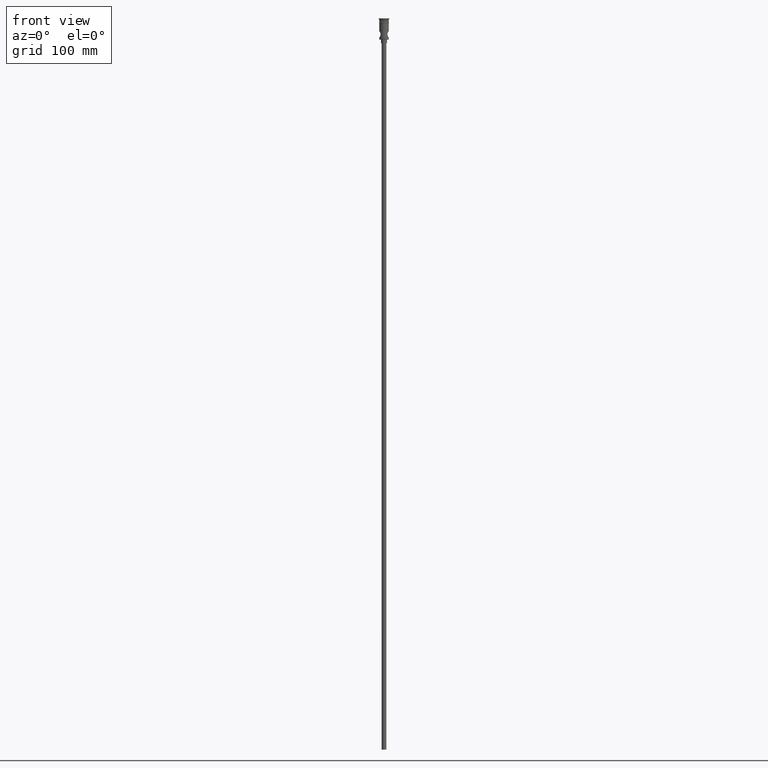
[diagram: clean part render]
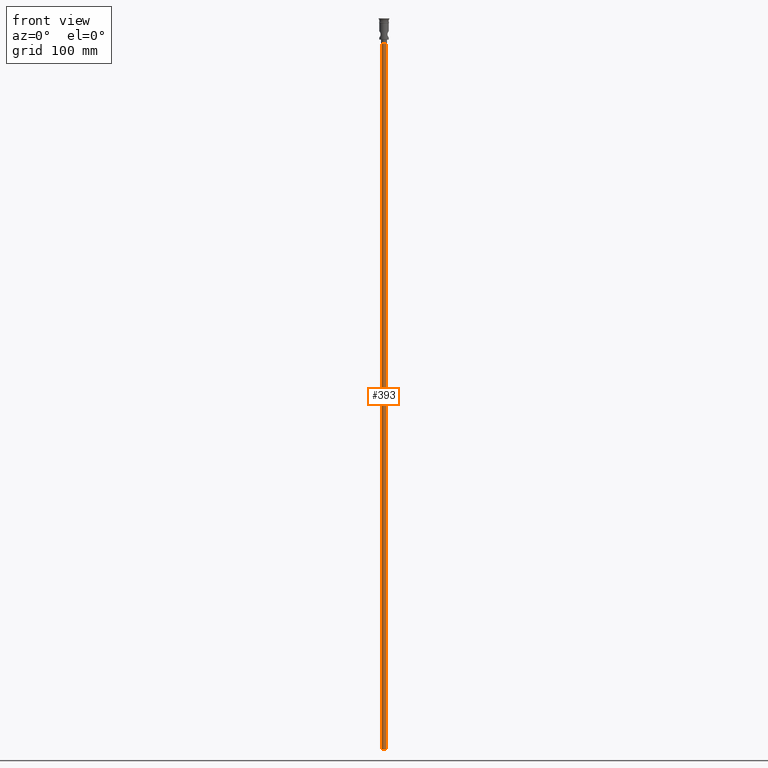
[diagram: same view with one face highlighted and labeled with its STEP entity id]
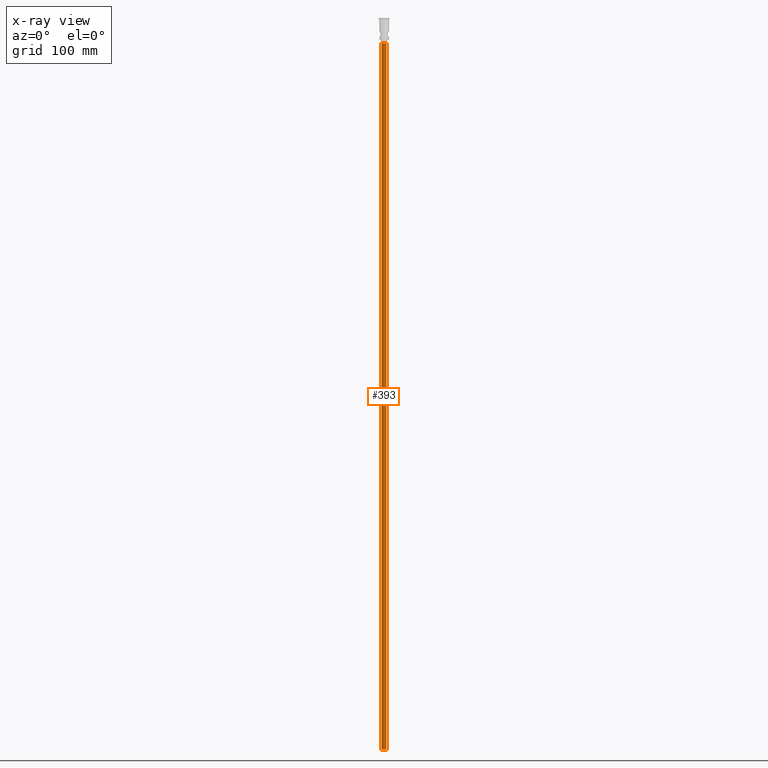
[diagram: x-ray of the same camera — body ghosted, the highlighted face saturated]
A machine part, front view. The second image highlights one B-rep face of the part: STEP entity #393.
The next image is the same camera in x-ray: the body ghosted, the highlighted face saturated — about 0% of this face is hidden behind the body in this view.
In plain terms, the highlighted cylindrical surface (edge-blend (fillet) strip) has radius 2 mm, axis along (-0, -0, 1).
Its self-contained STEP definition (entity closure, byte-faithful):
#42 = CARTESIAN_POINT ( 'NONE',  ( 0.000000000000000000, 0.000000000000000000, -618.0000000000000000 ) ) ;
#129 = CARTESIAN_POINT ( 'NONE',  ( 0.000000000000000000, 0.000000000000000000, -618.0000000000000000 ) ) ;
#151 = DIRECTION ( 'NONE',  ( 1.000000000000000000, 0.000000000000000000, 0.000000000000000000 ) ) ;
#155 = CARTESIAN_POINT ( 'NONE',  ( -2.000000000000000000, 2.449293598294706414E-16, -618.0000000000000000 ) ) ;
#185 = AXIS2_PLACEMENT_3D ( 'NONE', #42, #1153, #151 ) ;
#224 = FACE_OUTER_BOUND ( 'NONE', #814, .T. ) ;
#226 = DIRECTION ( 'NONE',  ( -0.000000000000000000, -0.000000000000000000, 1.000000000000000000 ) ) ;
#229 = CARTESIAN_POINT ( 'NONE',  ( 2.000000000000000000, 0.000000000000000000, -618.0000000000000000 ) ) ;
#277 = VERTEX_POINT ( 'NONE', #584 ) ;
#328 = AXIS2_PLACEMENT_3D ( 'NONE', #129, #905, #1350 ) ;
#356 = DIRECTION ( 'NONE',  ( -1.000000000000000000, 0.000000000000000000, 0.000000000000000000 ) ) ;
#393 = ADVANCED_FACE ( 'NONE', ( #224 ), #1118, .T. ) ;
#533 = AXIS2_PLACEMENT_3D ( 'NONE', #786, #1236, #356 ) ;
#564 = LINE ( 'NONE', #1208, #620 ) ;
#573 = DIRECTION ( 'NONE',  ( -0.000000000000000000, -0.000000000000000000, 1.000000000000000000 ) ) ;
#577 = CIRCLE ( 'NONE', #328, 2.000000000000000000 ) ;
#584 = CARTESIAN_POINT ( 'NONE',  ( -2.000000000000000000, 2.449293598294706414E-16, -20.99999999999999645 ) ) ;
#620 = VECTOR ( 'NONE', #226, 1000.000000000000000 ) ;
#652 = LINE ( 'NONE', #229, #1429 ) ;
#674 = VERTEX_POINT ( 'NONE', #1041 ) ;
#786 = CARTESIAN_POINT ( 'NONE',  ( 0.000000000000000000, 0.000000000000000000, -20.99999999999999645 ) ) ;
#806 = EDGE_CURVE ( 'NONE', #674, #277, #821, .T. ) ;
#814 = EDGE_LOOP ( 'NONE', ( #827, #1333, #1267, #1385 ) ) ;
#821 = CIRCLE ( 'NONE', #533, 2.000000000000000000 ) ;
#827 = ORIENTED_EDGE ( 'NONE', *, *, #1252, .F. ) ;
#829 = VERTEX_POINT ( 'NONE', #155 ) ;
#855 = EDGE_CURVE ( 'NONE', #964, #829, #577, .T. ) ;
#905 = DIRECTION ( 'NONE',  ( 0.000000000000000000, 0.000000000000000000, -1.000000000000000000 ) ) ;
#964 = VERTEX_POINT ( 'NONE', #1073 ) ;
#1041 = CARTESIAN_POINT ( 'NONE',  ( 2.000000000000000000, 0.000000000000000000, -20.99999999999999645 ) ) ;
#1073 = CARTESIAN_POINT ( 'NONE',  ( 2.000000000000000000, 0.000000000000000000, -618.0000000000000000 ) ) ;
#1118 = CYLINDRICAL_SURFACE ( 'NONE', #185, 2.000000000000000000 ) ;
#1153 = DIRECTION ( 'NONE',  ( -0.000000000000000000, -0.000000000000000000, 1.000000000000000000 ) ) ;
#1208 = CARTESIAN_POINT ( 'NONE',  ( -2.000000000000000000, 2.449293598294706414E-16, -618.0000000000000000 ) ) ;
#1236 = DIRECTION ( 'NONE',  ( 0.000000000000000000, 0.000000000000000000, -1.000000000000000000 ) ) ;
#1252 = EDGE_CURVE ( 'NONE', #829, #277, #564, .T. ) ;
#1267 = ORIENTED_EDGE ( 'NONE', *, *, #1269, .T. ) ;
#1269 = EDGE_CURVE ( 'NONE', #964, #674, #652, .T. ) ;
#1333 = ORIENTED_EDGE ( 'NONE', *, *, #855, .F. ) ;
#1350 = DIRECTION ( 'NONE',  ( -1.000000000000000000, 0.000000000000000000, 0.000000000000000000 ) ) ;
#1385 = ORIENTED_EDGE ( 'NONE', *, *, #806, .T. ) ;
#1429 = VECTOR ( 'NONE', #573, 1000.000000000000000 ) ;